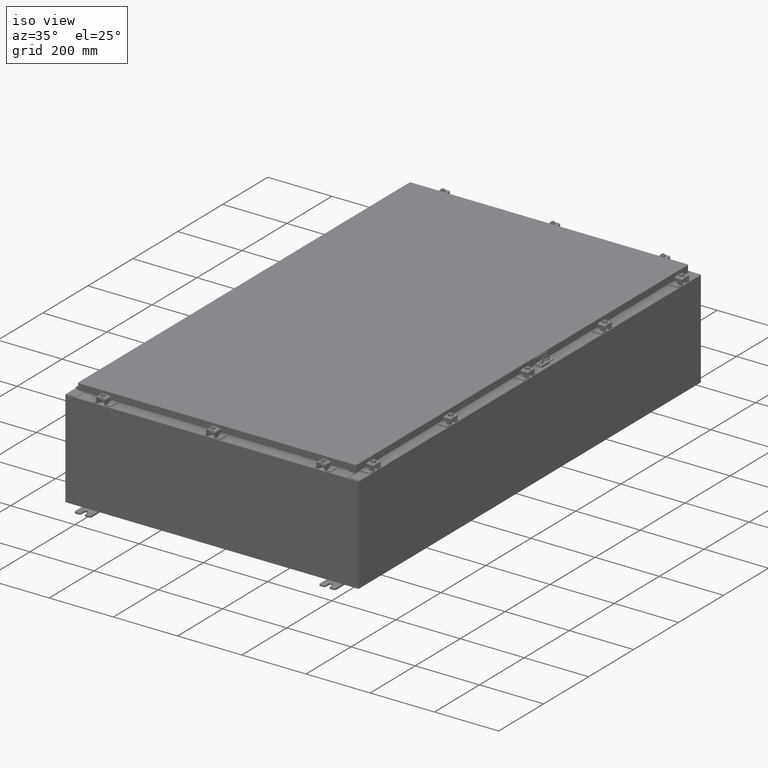
[diagram: clean part render]
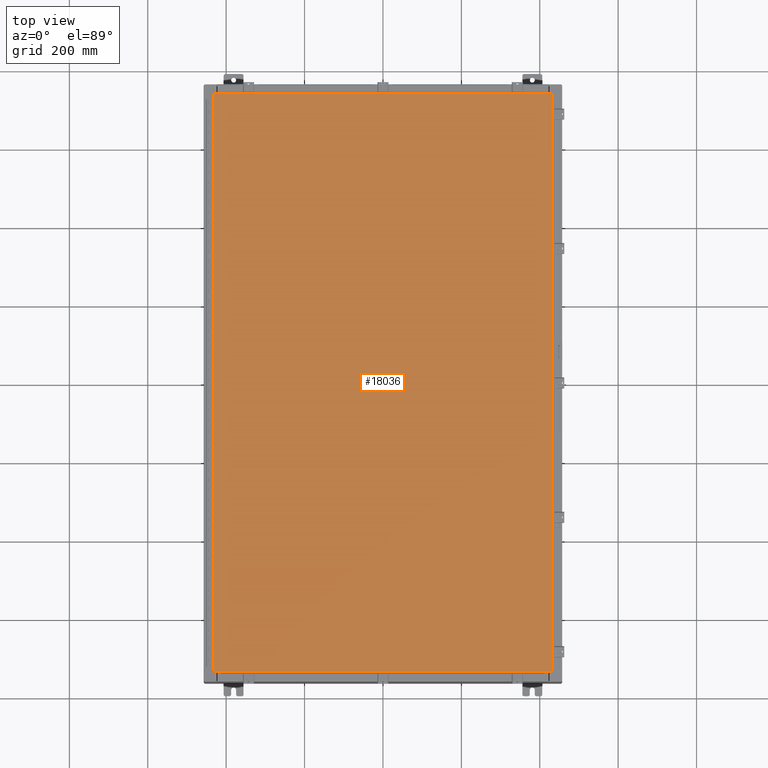
[diagram: tour spotlight — one face highlighted and labeled with its STEP entity id]
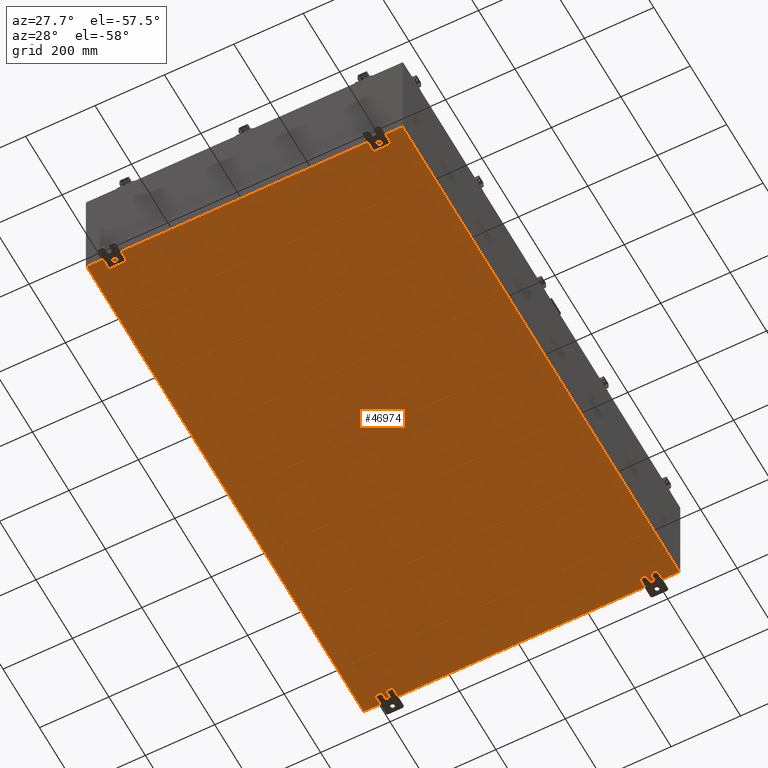
[diagram: tour spotlight — one face highlighted and labeled with its STEP entity id]
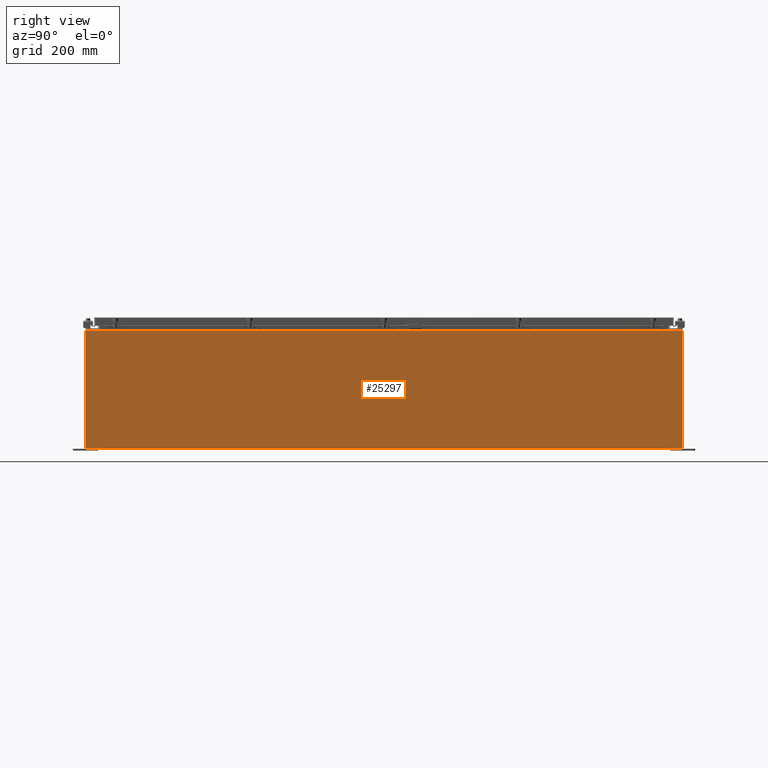
[diagram: tour spotlight — one face highlighted and labeled with its STEP entity id]
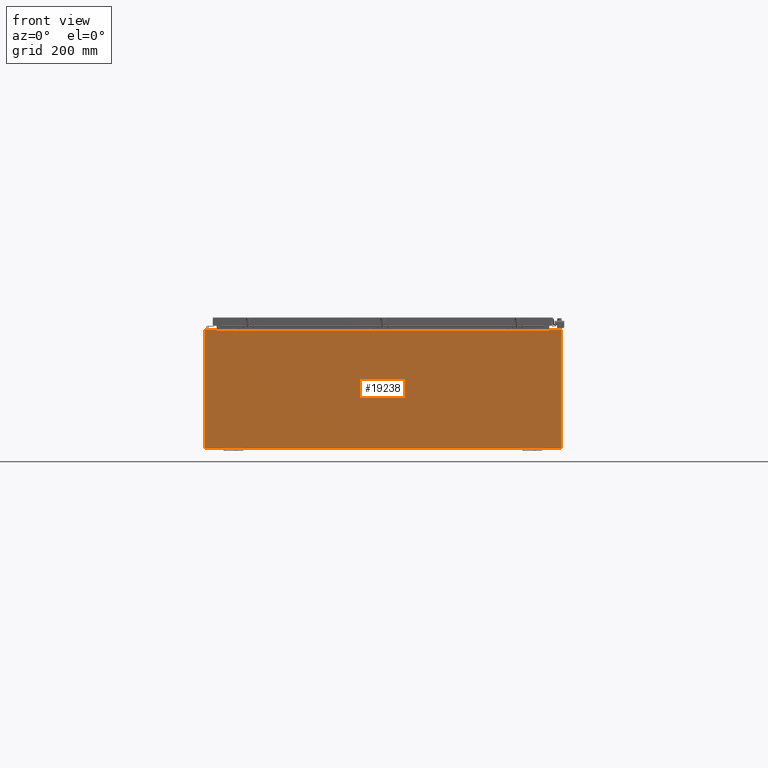
[diagram: tour spotlight — one face highlighted and labeled with its STEP entity id]
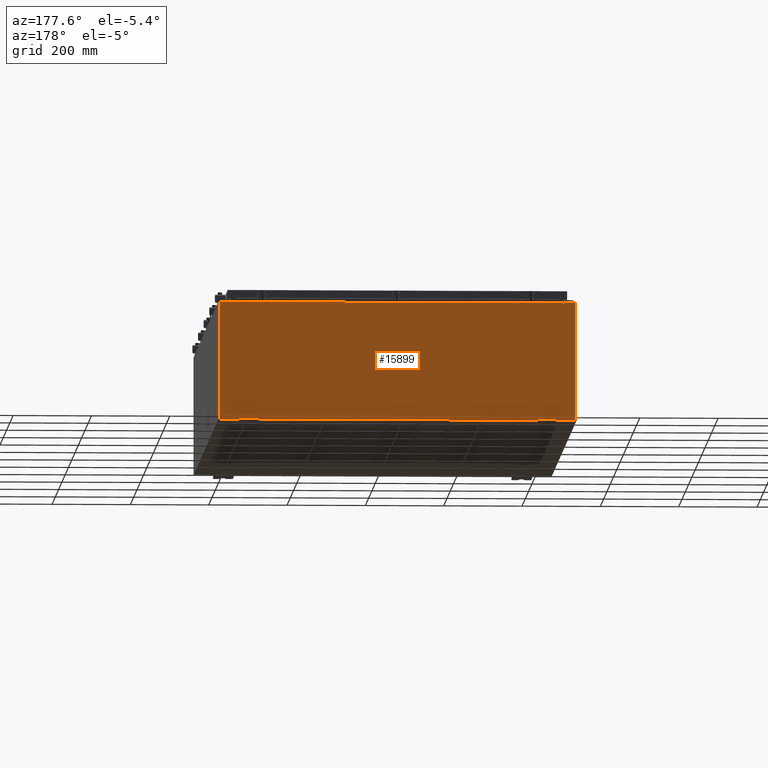
[diagram: tour spotlight — one face highlighted and labeled with its STEP entity id]
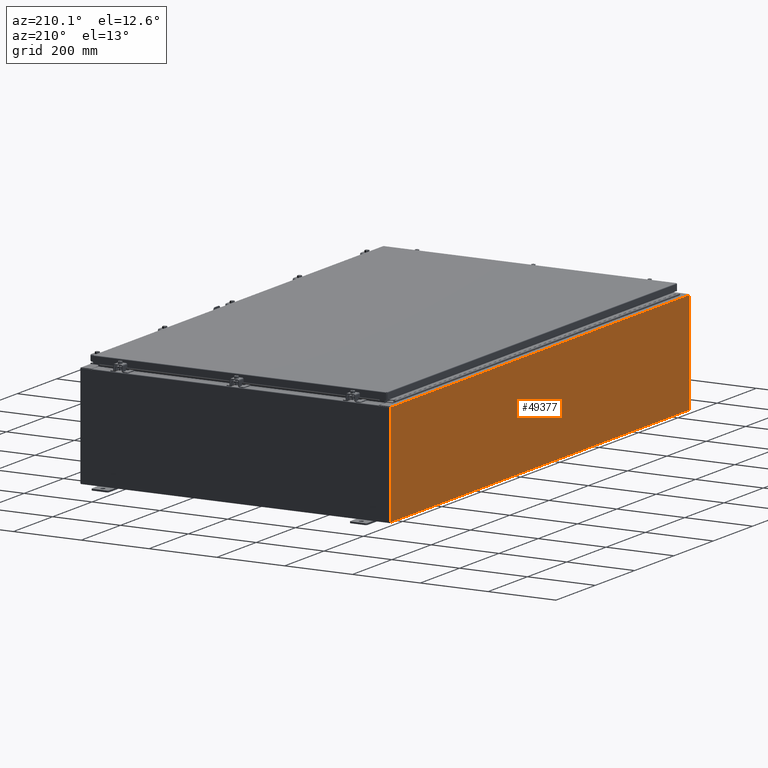
[diagram: tour spotlight — one face highlighted and labeled with its STEP entity id]
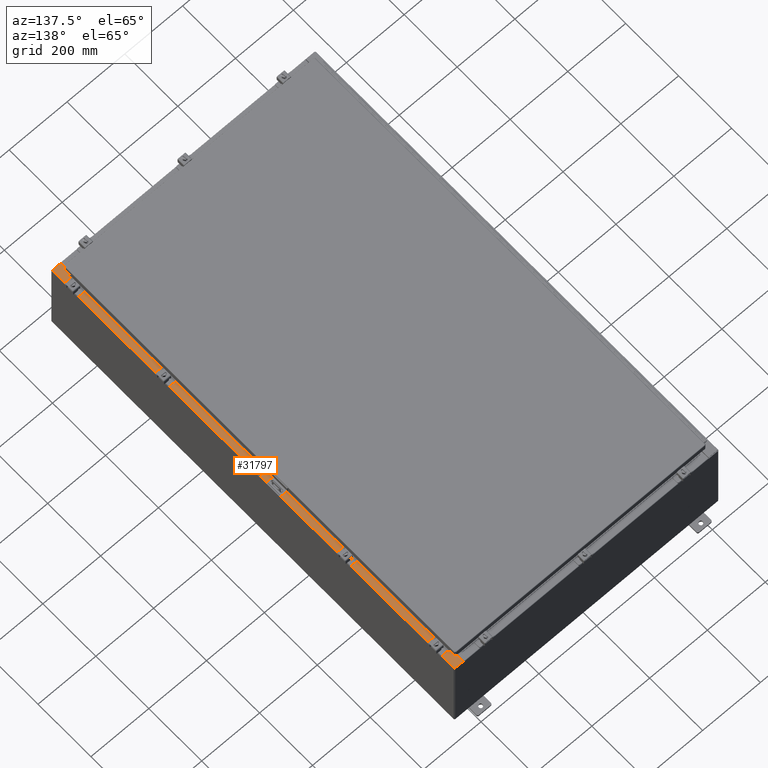
[diagram: tour spotlight — one face highlighted and labeled with its STEP entity id]
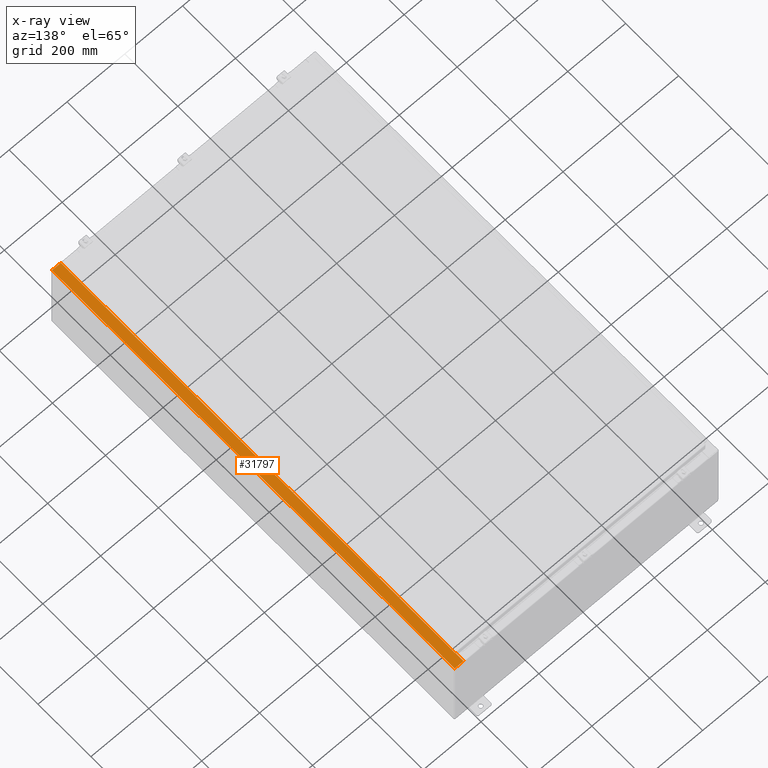
[diagram: x-ray of the same camera — body ghosted, this tour face saturated]
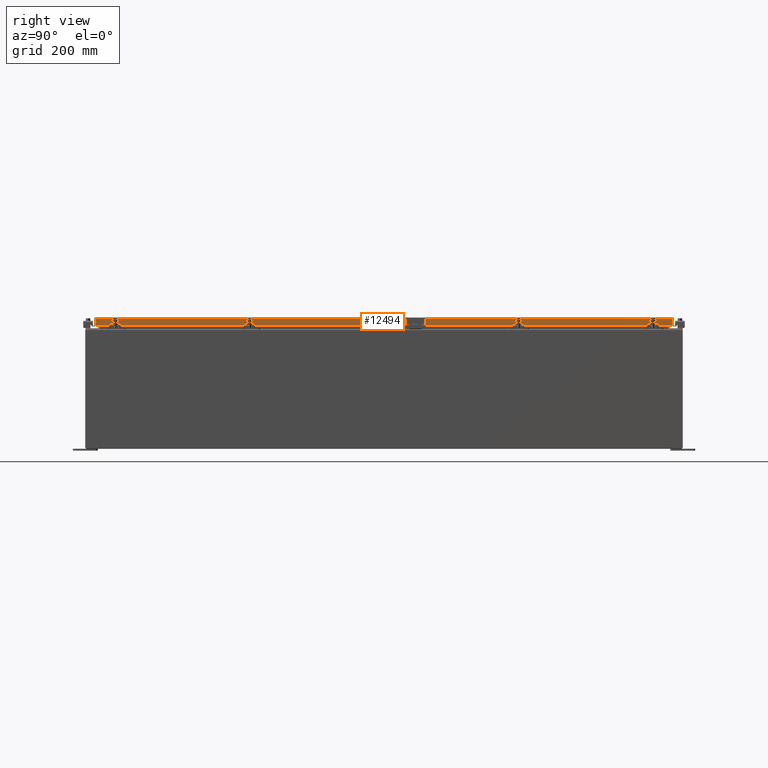
[diagram: tour spotlight — one face highlighted and labeled with its STEP entity id]
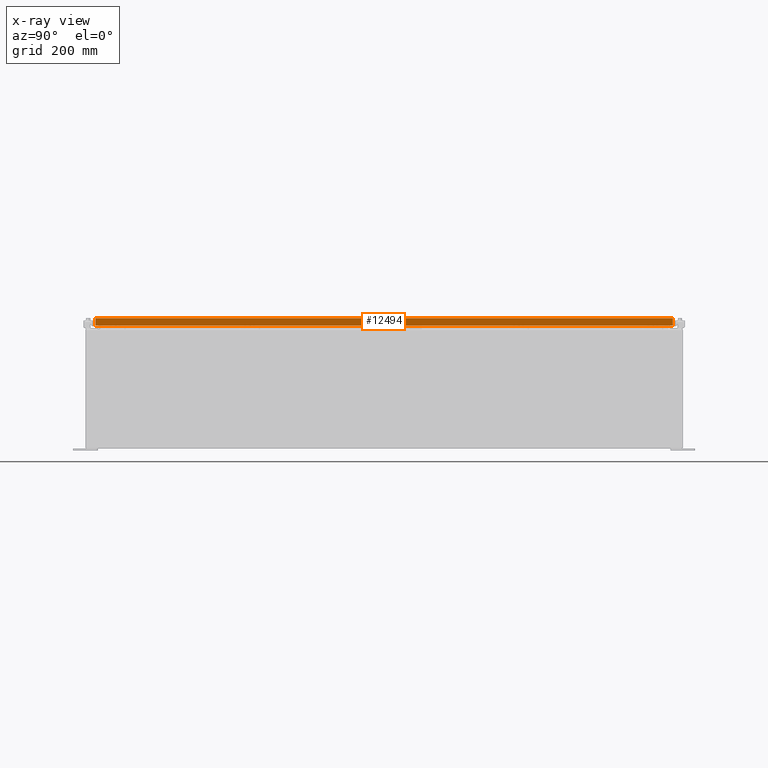
[diagram: x-ray of the same camera — body ghosted, this tour face saturated]
A machine part: a face-by-face anatomy tour. The part has 3554 B-rep faces; the first image is the clean iso view, then the 8 largest visible faces are spotlighted one at a time (largest first), each with its STEP entity span.

Face 1 — top view, entity #18036. In plain terms, the highlighted planar face has unit normal (0, 0, -1).
Definition (entity closure, byte-faithful):
#2076 = LINE ( 'NONE', #22888, #25494 ) ;
#2261 = VERTEX_POINT ( 'NONE', #32185 ) ;
#2514 = CARTESIAN_POINT ( 'NONE',  ( -16.99029999999999800, -29.00630000000000300, 2.185478394931410600E-015 ) ) ;
#4805 = ORIENTED_EDGE ( 'NONE', *, *, #32977, .T. ) ;
#5569 = EDGE_CURVE ( 'NONE', #51980, #23741, #58957, .T. ) ;
#12551 = PLANE ( 'NONE',  #32837 ) ;
#13723 = ORIENTED_EDGE ( 'NONE', *, *, #26821, .T. ) ;
#17564 = DIRECTION ( 'NONE',  ( 0.0000000000000000000, 0.0000000000000000000, -1.000000000000000000 ) ) ;
#18036 = ADVANCED_FACE ( 'NONE', ( #22284 ), #12551, .F. ) ;
#18334 = CARTESIAN_POINT ( 'NONE',  ( 16.99030000000000500, 29.00630000000000300, 2.185478394931410600E-015 ) ) ;
#18447 = VECTOR ( 'NONE', #64044, 39.37007874015748100 ) ;
#20234 = DIRECTION ( 'NONE',  ( -1.000000000000000000, -0.0000000000000000000, -0.0000000000000000000 ) ) ;
#20605 = VECTOR ( 'NONE', #37382, 39.37007874015748100 ) ;
#20784 = VECTOR ( 'NONE', #20234, 39.37007874015748100 ) ;
#22284 = FACE_OUTER_BOUND ( 'NONE', #61946, .T. ) ;
#22888 = CARTESIAN_POINT ( 'NONE',  ( -16.99029999999998400, 29.00630000000000000, 4.370956789862821100E-015 ) ) ;
#23741 = VERTEX_POINT ( 'NONE', #37579 ) ;
#25494 = VECTOR ( 'NONE', #57697, 39.37007874015748100 ) ;
#26821 = EDGE_CURVE ( 'NONE', #23741, #2261, #2076, .T. ) ;
#32185 = CARTESIAN_POINT ( 'NONE',  ( -16.99029999999999800, -29.00630000000000300, 2.185478394931410600E-015 ) ) ;
#32837 = AXIS2_PLACEMENT_3D ( 'NONE', #42398, #17564, #52376 ) ;
#32977 = EDGE_CURVE ( 'NONE', #37134, #51980, #58158, .T. ) ;
#37134 = VERTEX_POINT ( 'NONE', #50047 ) ;
#37382 = DIRECTION ( 'NONE',  ( 1.000000000000000000, -0.0000000000000000000, -0.0000000000000000000 ) ) ;
#37579 = CARTESIAN_POINT ( 'NONE',  ( -16.99029999999998400, 29.00630000000000000, 4.370956789862821100E-015 ) ) ;
#40736 = ORIENTED_EDGE ( 'NONE', *, *, #5569, .T. ) ;
#41894 = ORIENTED_EDGE ( 'NONE', *, *, #43353, .T. ) ;
#42398 = CARTESIAN_POINT ( 'NONE',  ( 0.0000000000000000000, 0.0000000000000000000, 0.0000000000000000000 ) ) ;
#43353 = EDGE_CURVE ( 'NONE', #2261, #37134, #47117, .T. ) ;
#47117 = LINE ( 'NONE', #2514, #20605 ) ;
#50031 = CARTESIAN_POINT ( 'NONE',  ( 16.99030000000000500, 29.00630000000000300, 2.185478394931410600E-015 ) ) ;
#50047 = CARTESIAN_POINT ( 'NONE',  ( 16.99030000000000500, -29.00630000000000000, 0.0000000000000000000 ) ) ;
#51980 = VERTEX_POINT ( 'NONE', #18334 ) ;
#52376 = DIRECTION ( 'NONE',  ( -1.000000000000000000, 0.0000000000000000000, -0.0000000000000000000 ) ) ;
#54256 = CARTESIAN_POINT ( 'NONE',  ( 16.99030000000000500, -29.00630000000000000, 0.0000000000000000000 ) ) ;
#57697 = DIRECTION ( 'NONE',  ( 0.0000000000000000000, -1.000000000000000000, 0.0000000000000000000 ) ) ;
#58158 = LINE ( 'NONE', #54256, #18447 ) ;
#58957 = LINE ( 'NONE', #50031, #20784 ) ;
#61946 = EDGE_LOOP ( 'NONE', ( #41894, #4805, #40736, #13723 ) ) ;
#64044 = DIRECTION ( 'NONE',  ( 0.0000000000000000000, 1.000000000000000000, 0.0000000000000000000 ) ) ;

Face 2 — auxiliary view, entity #46974. In plain terms, the highlighted planar face has unit normal (0, 0, -1).
Definition (entity closure, byte-faithful):
#1791 = ORIENTED_EDGE ( 'NONE', *, *, #50958, .T. ) ;
#2017 = LINE ( 'NONE', #12471, #53434 ) ;
#2811 = LINE ( 'NONE', #39851, #54238 ) ;
#3257 = DIRECTION ( 'NONE',  ( 0.0000000000000000000, 0.0000000000000000000, -1.000000000000000000 ) ) ;
#7009 = EDGE_LOOP ( 'NONE', ( #55235, #1791, #44378, #52585 ) ) ;
#9996 = DIRECTION ( 'NONE',  ( -1.000000000000000000, -0.0000000000000000000, -0.0000000000000000000 ) ) ;
#10268 = AXIS2_PLACEMENT_3D ( 'NONE', #18085, #3257, #38132 ) ;
#12471 = CARTESIAN_POINT ( 'NONE',  ( -18.00000000000000400, -29.92530000000001100, -0.07469999999999998900 ) ) ;
#18085 = CARTESIAN_POINT ( 'NONE',  ( 0.0000000000000000000, 0.0000000000000000000, -0.07469999999999998900 ) ) ;
#18659 = CARTESIAN_POINT ( 'NONE',  ( -17.91230000000000200, -29.92530000000002100, -0.07469999999999996100 ) ) ;
#19912 = CARTESIAN_POINT ( 'NONE',  ( -17.91230000000000200, 29.92529999999998600, -0.07469999999999998900 ) ) ;
#20500 = VERTEX_POINT ( 'NONE', #44718 ) ;
#27079 = EDGE_CURVE ( 'NONE', #20500, #53424, #2811, .T. ) ;
#30181 = DIRECTION ( 'NONE',  ( -0.0000000000000000000, -1.000000000000000000, -0.0000000000000000000 ) ) ;
#33113 = PLANE ( 'NONE',  #10268 ) ;
#37734 = EDGE_CURVE ( 'NONE', #20500, #54442, #44159, .T. ) ;
#38025 = EDGE_CURVE ( 'NONE', #39006, #54442, #2017, .T. ) ;
#38132 = DIRECTION ( 'NONE',  ( -1.000000000000000000, 0.0000000000000000000, -0.0000000000000000000 ) ) ;
#39006 = VERTEX_POINT ( 'NONE', #55904 ) ;
#39851 = CARTESIAN_POINT ( 'NONE',  ( -18.00000000000000400, 29.92529999999998900, -0.07469999999999998900 ) ) ;
#40205 = CARTESIAN_POINT ( 'NONE',  ( 17.91229999999999800, 29.92529999999999300, -0.07469999999999996100 ) ) ;
#41180 = FACE_OUTER_BOUND ( 'NONE', #7009, .T. ) ;
#41837 = CARTESIAN_POINT ( 'NONE',  ( 17.91229999999999800, -29.92530000000001100, -0.07469999999999998900 ) ) ;
#44159 = LINE ( 'NONE', #40205, #55804 ) ;
#44378 = ORIENTED_EDGE ( 'NONE', *, *, #27079, .F. ) ;
#44718 = CARTESIAN_POINT ( 'NONE',  ( 17.91229999999999800, 29.92529999999999300, -0.07469999999999996100 ) ) ;
#46974 = ADVANCED_FACE ( 'NONE', ( #41180 ), #33113, .T. ) ;
#49062 = VECTOR ( 'NONE', #53468, 39.37007874015748100 ) ;
#50958 = EDGE_CURVE ( 'NONE', #39006, #53424, #62269, .T. ) ;
#52585 = ORIENTED_EDGE ( 'NONE', *, *, #37734, .T. ) ;
#53424 = VERTEX_POINT ( 'NONE', #19912 ) ;
#53434 = VECTOR ( 'NONE', #57318, 39.37007874015748100 ) ;
#53468 = DIRECTION ( 'NONE',  ( -0.0000000000000000000, 1.000000000000000000, -0.0000000000000000000 ) ) ;
#54238 = VECTOR ( 'NONE', #9996, 39.37007874015748100 ) ;
#54442 = VERTEX_POINT ( 'NONE', #41837 ) ;
#55235 = ORIENTED_EDGE ( 'NONE', *, *, #38025, .F. ) ;
#55804 = VECTOR ( 'NONE', #30181, 39.37007874015748100 ) ;
#55904 = CARTESIAN_POINT ( 'NONE',  ( -17.91230000000000200, -29.92530000000001100, -0.07469999999999996100 ) ) ;
#57318 = DIRECTION ( 'NONE',  ( 1.000000000000000000, 0.0000000000000000000, 0.0000000000000000000 ) ) ;
#62269 = LINE ( 'NONE', #18659, #49062 ) ;

Face 3 — right view, entity #25297. In plain terms, the highlighted planar face has unit normal (-1, 0, 0).
Definition (entity closure, byte-faithful):
#601 = CARTESIAN_POINT ( 'NONE',  ( 18.00000000000003900, -29.92530000000001100, 11.83760000000000200 ) ) ;
#1358 = DIRECTION ( 'NONE',  ( -3.482016343714355500E-015, 0.0000000000000000000, -1.000000000000000000 ) ) ;
#1902 = LINE ( 'NONE', #18791, #13592 ) ;
#8255 = VERTEX_POINT ( 'NONE', #24995 ) ;
#8955 = EDGE_CURVE ( 'NONE', #56559, #25603, #31363, .T. ) ;
#9485 = VECTOR ( 'NONE', #1358, 39.37007874015748100 ) ;
#10104 = VERTEX_POINT ( 'NONE', #24286 ) ;
#13471 = CARTESIAN_POINT ( 'NONE',  ( 17.99999999999999600, 0.0000000000000000000, -6.293494815404046100E-014 ) ) ;
#13592 = VECTOR ( 'NONE', #58620, 39.37007874015748100 ) ;
#14316 = ORIENTED_EDGE ( 'NONE', *, *, #43026, .T. ) ;
#18411 = ORIENTED_EDGE ( 'NONE', *, *, #39712, .T. ) ;
#18488 = DIRECTION ( 'NONE',  ( 3.482016343714355100E-015, 0.0000000000000000000, 1.000000000000000000 ) ) ;
#18791 = CARTESIAN_POINT ( 'NONE',  ( 18.00000000000003900, 29.92529999999999300, 11.83760000000000200 ) ) ;
#21398 = CARTESIAN_POINT ( 'NONE',  ( 17.99999999999999600, -29.92530000000001100, -6.293494815404046100E-014 ) ) ;
#22995 = LINE ( 'NONE', #25051, #34646 ) ;
#23608 = AXIS2_PLACEMENT_3D ( 'NONE', #13471, #48331, #18488 ) ;
#24286 = CARTESIAN_POINT ( 'NONE',  ( 17.99999999999999600, 29.92529999999999300, 0.01299999999999985200 ) ) ;
#24995 = CARTESIAN_POINT ( 'NONE',  ( 18.00000000000003900, 29.92529999999999300, 11.83760000000000200 ) ) ;
#25051 = CARTESIAN_POINT ( 'NONE',  ( 17.99999999999999600, 29.92529999999998900, -6.293494815404046100E-014 ) ) ;
#25297 = ADVANCED_FACE ( 'NONE', ( #61487 ), #43313, .F. ) ;
#25603 = VERTEX_POINT ( 'NONE', #25869 ) ;
#25869 = CARTESIAN_POINT ( 'NONE',  ( 17.99999999999999600, -29.92530000000001100, 0.01299999999999985200 ) ) ;
#28200 = EDGE_LOOP ( 'NONE', ( #18411, #31679, #30068, #14316 ) ) ;
#28361 = LINE ( 'NONE', #31920, #53246 ) ;
#30068 = ORIENTED_EDGE ( 'NONE', *, *, #58838, .F. ) ;
#31363 = LINE ( 'NONE', #21398, #9485 ) ;
#31679 = ORIENTED_EDGE ( 'NONE', *, *, #8955, .T. ) ;
#31920 = CARTESIAN_POINT ( 'NONE',  ( 17.99999999999999600, -29.92530000000001100, 0.01299999999999985200 ) ) ;
#34646 = VECTOR ( 'NONE', #54824, 39.37007874015748100 ) ;
#39712 = EDGE_CURVE ( 'NONE', #8255, #56559, #1902, .T. ) ;
#43026 = EDGE_CURVE ( 'NONE', #10104, #8255, #22995, .T. ) ;
#43313 = PLANE ( 'NONE',  #23608 ) ;
#48331 = DIRECTION ( 'NONE',  ( -1.000000000000000000, 0.0000000000000000000, 3.482016343714355100E-015 ) ) ;
#53246 = VECTOR ( 'NONE', #61692, 39.37007874015748100 ) ;
#54824 = DIRECTION ( 'NONE',  ( 3.482016343714355500E-015, 0.0000000000000000000, 1.000000000000000000 ) ) ;
#56559 = VERTEX_POINT ( 'NONE', #601 ) ;
#58620 = DIRECTION ( 'NONE',  ( -0.0000000000000000000, -1.000000000000000000, -0.0000000000000000000 ) ) ;
#58838 = EDGE_CURVE ( 'NONE', #10104, #25603, #28361, .T. ) ;
#61487 = FACE_OUTER_BOUND ( 'NONE', #28200, .T. ) ;
#61692 = DIRECTION ( 'NONE',  ( -0.0000000000000000000, -1.000000000000000000, -0.0000000000000000000 ) ) ;

Face 4 — front view, entity #19238. In plain terms, the highlighted planar face has unit normal (0, 1, -0).
Definition (entity closure, byte-faithful):
#370 = ORIENTED_EDGE ( 'NONE', *, *, #5492, .T. ) ;
#508 = EDGE_LOOP ( 'NONE', ( #2580, #6771, #55484, #48830, #38501, #35771, #30732, #11753, #23488, #5987, #13632, #370 ) ) ;
#2554 = VECTOR ( 'NONE', #42338, 39.37007874015748100 ) ;
#2580 = ORIENTED_EDGE ( 'NONE', *, *, #55678, .F. ) ;
#2705 = VERTEX_POINT ( 'NONE', #64553 ) ;
#2760 = CARTESIAN_POINT ( 'NONE',  ( 16.63720000000000400, 0.0000000000000000000, 1.092739197465705300E-014 ) ) ;
#3083 = DIRECTION ( 'NONE',  ( 2.688223102148528000E-016, 1.000000000000000000, -1.677591767810434000E-016 ) ) ;
#3291 = VECTOR ( 'NONE', #26362, 39.37007874015748100 ) ;
#4143 = CARTESIAN_POINT ( 'NONE',  ( -16.67455000000000000, 0.0000000000000000000, 5.874949999999986800 ) ) ;
#4801 = EDGE_CURVE ( 'NONE', #45247, #5004, #23249, .T. ) ;
#5004 = VERTEX_POINT ( 'NONE', #4143 ) ;
#5026 = EDGE_CURVE ( 'NONE', #13296, #37782, #23985, .T. ) ;
#5492 = EDGE_CURVE ( 'NONE', #35417, #16003, #50376, .T. ) ;
#5987 = ORIENTED_EDGE ( 'NONE', *, *, #49272, .T. ) ;
#6771 = ORIENTED_EDGE ( 'NONE', *, *, #4801, .F. ) ;
#7016 = VECTOR ( 'NONE', #7778, 39.37007874015748100 ) ;
#7778 = DIRECTION ( 'NONE',  ( 8.326672684688674100E-016, -1.677591767810434500E-016, 1.000000000000000000 ) ) ;
#7993 = CARTESIAN_POINT ( 'NONE',  ( 16.63720000000000400, 0.0000000000000000000, 5.874950000000009000 ) ) ;
#9466 = CARTESIAN_POINT ( 'NONE',  ( -16.63720000000000000, 0.0000000000000000000, -1.092739197465705300E-014 ) ) ;
#10385 = LINE ( 'NONE', #55384, #11948 ) ;
#10681 = CARTESIAN_POINT ( 'NONE',  ( 17.92530000000000400, 0.0000000000000000000, 5.925300000000009800 ) ) ;
#11753 = ORIENTED_EDGE ( 'NONE', *, *, #35418, .T. ) ;
#11932 = AXIS2_PLACEMENT_3D ( 'NONE', #17888, #52686, #22908 ) ;
#11948 = VECTOR ( 'NONE', #25604, 39.37007874015748100 ) ;
#13296 = VERTEX_POINT ( 'NONE', #31264 ) ;
#13430 = VECTOR ( 'NONE', #34533, 39.37007874015748100 ) ;
#13632 = ORIENTED_EDGE ( 'NONE', *, *, #41399, .T. ) ;
#14126 = AXIS2_PLACEMENT_3D ( 'NONE', #32926, #3083, #37939 ) ;
#14158 = VECTOR ( 'NONE', #36068, 39.37007874015748100 ) ;
#14519 = CARTESIAN_POINT ( 'NONE',  ( -17.92529999999999600, 0.0000000000000000000, -5.925300000000011600 ) ) ;
#16003 = VERTEX_POINT ( 'NONE', #29375 ) ;
#16544 = LINE ( 'NONE', #21313, #3291 ) ;
#17888 = CARTESIAN_POINT ( 'NONE',  ( 16.65587500000000500, 0.0000000000000000000, 5.874950000000009000 ) ) ;
#18203 = LINE ( 'NONE', #9466, #43145 ) ;
#18516 = CARTESIAN_POINT ( 'NONE',  ( 0.0000000000000000000, 0.0000000000000000000, 0.0000000000000000000 ) ) ;
#19238 = ADVANCED_FACE ( 'NONE', ( #49385 ), #48348, .F. ) ;
#21109 = CARTESIAN_POINT ( 'NONE',  ( -17.92529999999999600, 0.0000000000000000000, 5.925299999999988500 ) ) ;
#21221 = VERTEX_POINT ( 'NONE', #40125 ) ;
#21313 = CARTESIAN_POINT ( 'NONE',  ( -17.92529999999999600, 0.0000000000000000000, 5.925299999999988500 ) ) ;
#22852 = CARTESIAN_POINT ( 'NONE',  ( 17.92530000000000400, 0.0000000000000000000, 5.925300000000009800 ) ) ;
#22908 = DIRECTION ( 'NONE',  ( 0.0000000000000000000, 1.677591767810434500E-016, -1.000000000000000000 ) ) ;
#23249 = CIRCLE ( 'NONE', #14126, 0.01867499999999949400 ) ;
#23488 = ORIENTED_EDGE ( 'NONE', *, *, #62375, .T. ) ;
#23524 = DIRECTION ( 'NONE',  ( -2.688223102148531000E-016, -1.000000000000000000, -1.677591767810432300E-016 ) ) ;
#23985 = LINE ( 'NONE', #44472, #50436 ) ;
#24512 = DIRECTION ( 'NONE',  ( -8.326672684688674100E-016, 1.677591767810434500E-016, -1.000000000000000000 ) ) ;
#25604 = DIRECTION ( 'NONE',  ( -8.764412287646708500E-014, 1.677591767810201100E-016, -1.000000000000000000 ) ) ;
#26362 = DIRECTION ( 'NONE',  ( 1.000000000000000000, 2.688223102148527500E-016, 8.631476285595129400E-016 ) ) ;
#27434 = LINE ( 'NONE', #45908, #14158 ) ;
#29375 = CARTESIAN_POINT ( 'NONE',  ( -16.67455000000000000, 0.0000000000000000000, 5.925299999999988500 ) ) ;
#29433 = DIRECTION ( 'NONE',  ( 1.000000000000000000, 2.688223102148527500E-016, 8.326672684688674100E-016 ) ) ;
#30598 = CARTESIAN_POINT ( 'NONE',  ( 16.63720000000000400, 0.0000000000000000000, 5.912300000000009900 ) ) ;
#30732 = ORIENTED_EDGE ( 'NONE', *, *, #55544, .F. ) ;
#31264 = CARTESIAN_POINT ( 'NONE',  ( -16.63720000000000000, 0.0000000000000000000, 5.912299999999988600 ) ) ;
#32926 = CARTESIAN_POINT ( 'NONE',  ( -16.65587499999999800, 0.0000000000000000000, 5.874949999999986800 ) ) ;
#34533 = DIRECTION ( 'NONE',  ( -1.000000000000000000, -2.688223102148527500E-016, -8.326672684688674100E-016 ) ) ;
#34954 = EDGE_CURVE ( 'NONE', #50635, #47575, #54779, .T. ) ;
#35417 = VERTEX_POINT ( 'NONE', #21109 ) ;
#35418 = EDGE_CURVE ( 'NONE', #21221, #52527, #16544, .T. ) ;
#35771 = ORIENTED_EDGE ( 'NONE', *, *, #34954, .F. ) ;
#36068 = DIRECTION ( 'NONE',  ( 8.326672684688674100E-016, -1.677591767810434500E-016, 1.000000000000000000 ) ) ;
#37314 = CARTESIAN_POINT ( 'NONE',  ( -16.67455000000000000, 0.0000000000000000000, -1.639108796198557900E-014 ) ) ;
#37627 = VECTOR ( 'NONE', #55508, 39.37007874015748100 ) ;
#37782 = VERTEX_POINT ( 'NONE', #30598 ) ;
#37939 = DIRECTION ( 'NONE',  ( 0.0000000000000000000, 1.677591767810434500E-016, -1.000000000000000000 ) ) ;
#38363 = LINE ( 'NONE', #14519, #13430 ) ;
#38501 = ORIENTED_EDGE ( 'NONE', *, *, #49012, .F. ) ;
#39410 = CARTESIAN_POINT ( 'NONE',  ( -17.92529999999999600, 0.0000000000000000000, 5.925299999999988500 ) ) ;
#39695 = LINE ( 'NONE', #10681, #37627 ) ;
#40125 = CARTESIAN_POINT ( 'NONE',  ( 16.67455000000000700, 0.0000000000000000000, 5.925300000000009800 ) ) ;
#41241 = AXIS2_PLACEMENT_3D ( 'NONE', #18516, #23524, #58336 ) ;
#41399 = EDGE_CURVE ( 'NONE', #64056, #35417, #27434, .T. ) ;
#42333 = LINE ( 'NONE', #37314, #2554 ) ;
#42338 = DIRECTION ( 'NONE',  ( 8.326672684688674100E-016, -1.677591767810434500E-016, 1.000000000000000000 ) ) ;
#43145 = VECTOR ( 'NONE', #24512, 39.37007874015748100 ) ;
#44472 = CARTESIAN_POINT ( 'NONE',  ( -16.63720000000000000, 0.0000000000000000000, 5.912299999999988600 ) ) ;
#45247 = VERTEX_POINT ( 'NONE', #48054 ) ;
#45908 = CARTESIAN_POINT ( 'NONE',  ( -17.92529999999999600, 0.0000000000000000000, 5.925299999999988500 ) ) ;
#45926 = CARTESIAN_POINT ( 'NONE',  ( 16.67455000000000400, 0.0000000000000000000, 5.874950000000009000 ) ) ;
#47575 = VERTEX_POINT ( 'NONE', #7993 ) ;
#48054 = CARTESIAN_POINT ( 'NONE',  ( -16.63720000000000000, 0.0000000000000000000, 5.874949999999986800 ) ) ;
#48348 = PLANE ( 'NONE',  #41241 ) ;
#48830 = ORIENTED_EDGE ( 'NONE', *, *, #5026, .T. ) ;
#49012 = EDGE_CURVE ( 'NONE', #47575, #37782, #63578, .T. ) ;
#49272 = EDGE_CURVE ( 'NONE', #2705, #64056, #38363, .T. ) ;
#49385 = FACE_OUTER_BOUND ( 'NONE', #508, .T. ) ;
#49656 = CARTESIAN_POINT ( 'NONE',  ( -17.92529999999999600, 0.0000000000000000000, -5.925300000000011600 ) ) ;
#50376 = LINE ( 'NONE', #39410, #53507 ) ;
#50436 = VECTOR ( 'NONE', #29433, 39.37007874015748100 ) ;
#50635 = VERTEX_POINT ( 'NONE', #45926 ) ;
#52527 = VERTEX_POINT ( 'NONE', #22852 ) ;
#52686 = DIRECTION ( 'NONE',  ( 2.688223102148528000E-016, 1.000000000000000000, -1.677591767810434000E-016 ) ) ;
#53507 = VECTOR ( 'NONE', #54395, 39.37007874015748100 ) ;
#54395 = DIRECTION ( 'NONE',  ( 1.000000000000000000, 2.688223102148527500E-016, 8.631476285595129400E-016 ) ) ;
#54779 = CIRCLE ( 'NONE', #11932, 0.01867499999999949400 ) ;
#55384 = CARTESIAN_POINT ( 'NONE',  ( 16.67454999999949500, 0.0000000000000000000, -1.431488348680073800E-012 ) ) ;
#55434 = EDGE_CURVE ( 'NONE', #13296, #45247, #18203, .T. ) ;
#55484 = ORIENTED_EDGE ( 'NONE', *, *, #55434, .F. ) ;
#55508 = DIRECTION ( 'NONE',  ( -8.326672684688674100E-016, 1.677591767810434500E-016, -1.000000000000000000 ) ) ;
#55544 = EDGE_CURVE ( 'NONE', #21221, #50635, #10385, .T. ) ;
#55678 = EDGE_CURVE ( 'NONE', #5004, #16003, #42333, .T. ) ;
#58336 = DIRECTION ( 'NONE',  ( -8.326672684688674100E-016, 1.677591767810434500E-016, -1.000000000000000000 ) ) ;
#62375 = EDGE_CURVE ( 'NONE', #52527, #2705, #39695, .T. ) ;
#63578 = LINE ( 'NONE', #2760, #7016 ) ;
#64056 = VERTEX_POINT ( 'NONE', #49656 ) ;
#64553 = CARTESIAN_POINT ( 'NONE',  ( 17.92530000000000400, 0.0000000000000000000, -5.925299999999989400 ) ) ;

Face 5 — auxiliary view, entity #15899. In plain terms, the highlighted planar face has unit normal (0, -1, 0).
Definition (entity closure, byte-faithful):
#313 = LINE ( 'NONE', #30324, #26841 ) ;
#701 = CARTESIAN_POINT ( 'NONE',  ( 16.67455000000000400, 0.0000000000000000000, 5.874949999999999200 ) ) ;
#783 = VERTEX_POINT ( 'NONE', #64521 ) ;
#1917 = VERTEX_POINT ( 'NONE', #48556 ) ;
#2829 = CARTESIAN_POINT ( 'NONE',  ( -16.65587499999999800, 0.0000000000000000000, 5.874949999999999200 ) ) ;
#3651 = EDGE_LOOP ( 'NONE', ( #50764, #28074, #61138, #45308, #58115, #60093, #49687, #42574, #20580, #14125, #46812, #18749 ) ) ;
#3769 = DIRECTION ( 'NONE',  ( 0.0000000000000000000, 0.0000000000000000000, -1.000000000000000000 ) ) ;
#3975 = EDGE_CURVE ( 'NONE', #36913, #46261, #18661, .T. ) ;
#4128 = CARTESIAN_POINT ( 'NONE',  ( -17.92529999999999600, 0.0000000000000000000, 5.925300000000000000 ) ) ;
#5471 = CARTESIAN_POINT ( 'NONE',  ( -17.92529999999999600, 0.0000000000000000000, -5.925300000000000000 ) ) ;
#6352 = VECTOR ( 'NONE', #35295, 39.37007874015748100 ) ;
#7846 = DIRECTION ( 'NONE',  ( 0.0000000000000000000, 0.0000000000000000000, -1.000000000000000000 ) ) ;
#8236 = LINE ( 'NONE', #28148, #59643 ) ;
#8740 = LINE ( 'NONE', #59794, #46955 ) ;
#10711 = EDGE_CURVE ( 'NONE', #27248, #20926, #15361, .T. ) ;
#12117 = CARTESIAN_POINT ( 'NONE',  ( -17.92529999999999600, 0.0000000000000000000, 5.925300000000000000 ) ) ;
#12389 = DIRECTION ( 'NONE',  ( 0.0000000000000000000, 0.0000000000000000000, 1.000000000000000000 ) ) ;
#12406 = CARTESIAN_POINT ( 'NONE',  ( -16.63720000000000000, 0.0000000000000000000, 5.912299999999998300 ) ) ;
#12840 = EDGE_CURVE ( 'NONE', #46261, #22266, #21300, .T. ) ;
#13726 = CARTESIAN_POINT ( 'NONE',  ( -16.63720000000000000, 0.0000000000000000000, 5.874949999999999200 ) ) ;
#13803 = EDGE_CURVE ( 'NONE', #63252, #783, #19627, .T. ) ;
#14125 = ORIENTED_EDGE ( 'NONE', *, *, #13803, .T. ) ;
#14708 = DIRECTION ( 'NONE',  ( -0.0000000000000000000, -0.0000000000000000000, 1.000000000000000000 ) ) ;
#14727 = CARTESIAN_POINT ( 'NONE',  ( 16.63720000000000400, 0.0000000000000000000, 5.874949999999999200 ) ) ;
#15361 = LINE ( 'NONE', #4128, #25517 ) ;
#15664 = LINE ( 'NONE', #33748, #40613 ) ;
#15899 = ADVANCED_FACE ( 'NONE', ( #60612 ), #23516, .F. ) ;
#16210 = CARTESIAN_POINT ( 'NONE',  ( -16.67455000000000000, 0.0000000000000000000, 5.925300000000000000 ) ) ;
#17472 = DIRECTION ( 'NONE',  ( -0.0000000000000000000, 1.000000000000000000, -0.0000000000000000000 ) ) ;
#18661 = CIRCLE ( 'NONE', #24546, 0.01867499999999949400 ) ;
#18749 = ORIENTED_EDGE ( 'NONE', *, *, #32126, .T. ) ;
#19627 = LINE ( 'NONE', #5471, #6352 ) ;
#19756 = VECTOR ( 'NONE', #12389, 39.37007874015748100 ) ;
#20580 = ORIENTED_EDGE ( 'NONE', *, *, #57756, .T. ) ;
#20719 = DIRECTION ( 'NONE',  ( 1.000000000000000000, 0.0000000000000000000, 0.0000000000000000000 ) ) ;
#20926 = VERTEX_POINT ( 'NONE', #43133 ) ;
#20989 = EDGE_CURVE ( 'NONE', #27248, #60047, #15664, .T. ) ;
#21106 = AXIS2_PLACEMENT_3D ( 'NONE', #47360, #17472, #52296 ) ;
#21300 = LINE ( 'NONE', #47265, #19756 ) ;
#21472 = VERTEX_POINT ( 'NONE', #12406 ) ;
#22266 = VERTEX_POINT ( 'NONE', #16210 ) ;
#22616 = CARTESIAN_POINT ( 'NONE',  ( 16.63720000000000400, 0.0000000000000000000, 5.912299999999998300 ) ) ;
#22979 = VECTOR ( 'NONE', #3769, 39.37007874015748100 ) ;
#23516 = PLANE ( 'NONE',  #23990 ) ;
#23990 = AXIS2_PLACEMENT_3D ( 'NONE', #53306, #28544, #63299 ) ;
#24187 = EDGE_CURVE ( 'NONE', #783, #1917, #60856, .T. ) ;
#24546 = AXIS2_PLACEMENT_3D ( 'NONE', #2829, #37679, #7846 ) ;
#25279 = CIRCLE ( 'NONE', #21106, 0.01867499999999949400 ) ;
#25517 = VECTOR ( 'NONE', #44025, 39.37007874015748100 ) ;
#26841 = VECTOR ( 'NONE', #20719, 39.37007874015748100 ) ;
#27248 = VERTEX_POINT ( 'NONE', #36089 ) ;
#28067 = EDGE_CURVE ( 'NONE', #21472, #36913, #36192, .T. ) ;
#28074 = ORIENTED_EDGE ( 'NONE', *, *, #3975, .F. ) ;
#28148 = CARTESIAN_POINT ( 'NONE',  ( 17.92530000000000400, 0.0000000000000000000, 5.925300000000000000 ) ) ;
#28544 = DIRECTION ( 'NONE',  ( 0.0000000000000000000, -1.000000000000000000, 0.0000000000000000000 ) ) ;
#29176 = VERTEX_POINT ( 'NONE', #22616 ) ;
#29685 = VERTEX_POINT ( 'NONE', #14727 ) ;
#30324 = CARTESIAN_POINT ( 'NONE',  ( -16.63720000000000000, 0.0000000000000000000, 5.912299999999998300 ) ) ;
#32126 = EDGE_CURVE ( 'NONE', #1917, #22266, #41945, .T. ) ;
#33748 = CARTESIAN_POINT ( 'NONE',  ( 16.67454999999949500, 0.0000000000000000000, -1.447879436642059600E-012 ) ) ;
#34535 = EDGE_CURVE ( 'NONE', #60047, #29685, #25279, .T. ) ;
#34955 = DIRECTION ( 'NONE',  ( 0.0000000000000000000, 0.0000000000000000000, 1.000000000000000000 ) ) ;
#35295 = DIRECTION ( 'NONE',  ( -1.000000000000000000, -0.0000000000000000000, -0.0000000000000000000 ) ) ;
#36089 = CARTESIAN_POINT ( 'NONE',  ( 16.67455000000000700, 0.0000000000000000000, 5.925300000000000000 ) ) ;
#36192 = LINE ( 'NONE', #63414, #22979 ) ;
#36913 = VERTEX_POINT ( 'NONE', #13726 ) ;
#37331 = CARTESIAN_POINT ( 'NONE',  ( -16.67455000000000000, 0.0000000000000000000, 5.874949999999999200 ) ) ;
#37491 = VECTOR ( 'NONE', #14708, 39.37007874015748100 ) ;
#37679 = DIRECTION ( 'NONE',  ( -0.0000000000000000000, 1.000000000000000000, -0.0000000000000000000 ) ) ;
#38151 = DIRECTION ( 'NONE',  ( 0.0000000000000000000, 0.0000000000000000000, -1.000000000000000000 ) ) ;
#38771 = DIRECTION ( 'NONE',  ( -8.681145560799821800E-014, 0.0000000000000000000, -1.000000000000000000 ) ) ;
#40613 = VECTOR ( 'NONE', #38771, 39.37007874015748100 ) ;
#41945 = LINE ( 'NONE', #12117, #53592 ) ;
#42574 = ORIENTED_EDGE ( 'NONE', *, *, #10711, .T. ) ;
#43133 = CARTESIAN_POINT ( 'NONE',  ( 17.92530000000000400, 0.0000000000000000000, 5.925300000000000000 ) ) ;
#44025 = DIRECTION ( 'NONE',  ( 1.000000000000000000, 0.0000000000000000000, 3.048036009064577000E-017 ) ) ;
#45308 = ORIENTED_EDGE ( 'NONE', *, *, #54295, .T. ) ;
#46261 = VERTEX_POINT ( 'NONE', #37331 ) ;
#46812 = ORIENTED_EDGE ( 'NONE', *, *, #24187, .T. ) ;
#46955 = VECTOR ( 'NONE', #34955, 39.37007874015748100 ) ;
#46985 = DIRECTION ( 'NONE',  ( 1.000000000000000000, 0.0000000000000000000, 3.048036009064577000E-017 ) ) ;
#47265 = CARTESIAN_POINT ( 'NONE',  ( -16.67455000000000000, 0.0000000000000000000, 0.0000000000000000000 ) ) ;
#47360 = CARTESIAN_POINT ( 'NONE',  ( 16.65587500000000500, 0.0000000000000000000, 5.874949999999999200 ) ) ;
#47812 = CARTESIAN_POINT ( 'NONE',  ( 17.92530000000000400, 0.0000000000000000000, -5.925300000000000000 ) ) ;
#48556 = CARTESIAN_POINT ( 'NONE',  ( -17.92529999999999600, 0.0000000000000000000, 5.925300000000000000 ) ) ;
#49305 = EDGE_CURVE ( 'NONE', #29685, #29176, #8740, .T. ) ;
#49687 = ORIENTED_EDGE ( 'NONE', *, *, #20989, .F. ) ;
#50764 = ORIENTED_EDGE ( 'NONE', *, *, #12840, .F. ) ;
#52296 = DIRECTION ( 'NONE',  ( 0.0000000000000000000, 0.0000000000000000000, -1.000000000000000000 ) ) ;
#53306 = CARTESIAN_POINT ( 'NONE',  ( 0.0000000000000000000, 0.0000000000000000000, 0.0000000000000000000 ) ) ;
#53592 = VECTOR ( 'NONE', #46985, 39.37007874015748100 ) ;
#54295 = EDGE_CURVE ( 'NONE', #21472, #29176, #313, .T. ) ;
#57756 = EDGE_CURVE ( 'NONE', #20926, #63252, #8236, .T. ) ;
#58115 = ORIENTED_EDGE ( 'NONE', *, *, #49305, .F. ) ;
#59643 = VECTOR ( 'NONE', #38151, 39.37007874015748100 ) ;
#59794 = CARTESIAN_POINT ( 'NONE',  ( 16.63720000000000400, 0.0000000000000000000, 0.0000000000000000000 ) ) ;
#60047 = VERTEX_POINT ( 'NONE', #701 ) ;
#60093 = ORIENTED_EDGE ( 'NONE', *, *, #34535, .F. ) ;
#60612 = FACE_OUTER_BOUND ( 'NONE', #3651, .T. ) ;
#60856 = LINE ( 'NONE', #64535, #37491 ) ;
#61138 = ORIENTED_EDGE ( 'NONE', *, *, #28067, .F. ) ;
#63252 = VERTEX_POINT ( 'NONE', #47812 ) ;
#63299 = DIRECTION ( 'NONE',  ( 0.0000000000000000000, -0.0000000000000000000, -1.000000000000000000 ) ) ;
#63414 = CARTESIAN_POINT ( 'NONE',  ( -16.63720000000000000, 0.0000000000000000000, 0.0000000000000000000 ) ) ;
#64521 = CARTESIAN_POINT ( 'NONE',  ( -17.92529999999999600, 0.0000000000000000000, -5.925300000000000000 ) ) ;
#64535 = CARTESIAN_POINT ( 'NONE',  ( -17.92529999999999600, 0.0000000000000000000, 5.925300000000000000 ) ) ;

Face 6 — auxiliary view, entity #49377. In plain terms, the highlighted planar face has unit normal (1, 0, 0).
Definition (entity closure, byte-faithful):
#550 = DIRECTION ( 'NONE',  ( 1.000000000000000000, 0.0000000000000000000, 3.482016343714355100E-015 ) ) ;
#867 = LINE ( 'NONE', #34206, #39070 ) ;
#4351 = DIRECTION ( 'NONE',  ( -0.0000000000000000000, 1.000000000000000000, -0.0000000000000000000 ) ) ;
#8247 = CARTESIAN_POINT ( 'NONE',  ( -18.00000000000004300, -29.92530000000001100, 11.83760000000000200 ) ) ;
#8616 = CARTESIAN_POINT ( 'NONE',  ( -18.00000000000000400, -29.92530000000001100, 0.01299999999999985200 ) ) ;
#9154 = DIRECTION ( 'NONE',  ( 0.0000000000000000000, 1.000000000000000000, 0.0000000000000000000 ) ) ;
#10576 = CARTESIAN_POINT ( 'NONE',  ( -18.00000000000000400, 0.0000000000000000000, -6.293494815404046100E-014 ) ) ;
#11404 = EDGE_CURVE ( 'NONE', #28088, #18493, #64316, .T. ) ;
#12819 = ORIENTED_EDGE ( 'NONE', *, *, #51298, .T. ) ;
#14172 = EDGE_CURVE ( 'NONE', #41704, #18493, #867, .T. ) ;
#15534 = ORIENTED_EDGE ( 'NONE', *, *, #14172, .F. ) ;
#18493 = VERTEX_POINT ( 'NONE', #52523 ) ;
#18644 = VECTOR ( 'NONE', #47418, 39.37007874015748100 ) ;
#20090 = ORIENTED_EDGE ( 'NONE', *, *, #11404, .T. ) ;
#20427 = DIRECTION ( 'NONE',  ( 3.482016343714355500E-015, 0.0000000000000000000, -1.000000000000000000 ) ) ;
#20602 = DIRECTION ( 'NONE',  ( 3.482016343714355100E-015, 0.0000000000000000000, -1.000000000000000000 ) ) ;
#20986 = VECTOR ( 'NONE', #9154, 39.37007874015748100 ) ;
#24605 = AXIS2_PLACEMENT_3D ( 'NONE', #10576, #550, #20602 ) ;
#28088 = VERTEX_POINT ( 'NONE', #38641 ) ;
#30454 = CARTESIAN_POINT ( 'NONE',  ( -18.00000000000000400, 29.92529999999998900, -6.293494815404046100E-014 ) ) ;
#30577 = EDGE_CURVE ( 'NONE', #37364, #28088, #60714, .T. ) ;
#34206 = CARTESIAN_POINT ( 'NONE',  ( -18.00000000000000400, 29.92529999999998900, 0.01299999999999985200 ) ) ;
#37364 = VERTEX_POINT ( 'NONE', #8247 ) ;
#38641 = CARTESIAN_POINT ( 'NONE',  ( -18.00000000000004300, 29.92529999999998900, 11.83760000000000200 ) ) ;
#39008 = CARTESIAN_POINT ( 'NONE',  ( -18.00000000000004300, -29.92530000000001800, 11.83760000000000200 ) ) ;
#39070 = VECTOR ( 'NONE', #4351, 39.37007874015748100 ) ;
#40440 = EDGE_LOOP ( 'NONE', ( #62843, #20090, #15534, #12819 ) ) ;
#41704 = VERTEX_POINT ( 'NONE', #8616 ) ;
#42376 = CARTESIAN_POINT ( 'NONE',  ( -18.00000000000000400, -29.92530000000001100, -6.293494815404046100E-014 ) ) ;
#45144 = LINE ( 'NONE', #42376, #18644 ) ;
#47418 = DIRECTION ( 'NONE',  ( -3.482016343714355500E-015, 0.0000000000000000000, 1.000000000000000000 ) ) ;
#49377 = ADVANCED_FACE ( 'NONE', ( #57018 ), #50404, .F. ) ;
#50404 = PLANE ( 'NONE',  #24605 ) ;
#51298 = EDGE_CURVE ( 'NONE', #41704, #37364, #45144, .T. ) ;
#52523 = CARTESIAN_POINT ( 'NONE',  ( -18.00000000000000400, 29.92529999999998600, 0.01299999999999985200 ) ) ;
#52632 = VECTOR ( 'NONE', #20427, 39.37007874015748100 ) ;
#57018 = FACE_OUTER_BOUND ( 'NONE', #40440, .T. ) ;
#60714 = LINE ( 'NONE', #39008, #20986 ) ;
#62843 = ORIENTED_EDGE ( 'NONE', *, *, #30577, .T. ) ;
#64316 = LINE ( 'NONE', #30454, #52632 ) ;

Face 7 — auxiliary view, entity #31797. An x-ray twin of the same camera follows (body ghosted, this face saturated) — the face is partly hidden behind the body. In plain terms, the highlighted planar face has unit normal (-0, 0, -1).
Definition (entity closure, byte-faithful):
#220 = LINE ( 'NONE', #3137, #38413 ) ;
#949 = DIRECTION ( 'NONE',  ( 1.000000000000000000, 0.0000000000000000000, 0.0000000000000000000 ) ) ;
#1273 = DIRECTION ( 'NONE',  ( -1.000000000000000000, 0.0000000000000000000, 0.0000000000000000000 ) ) ;
#2205 = LINE ( 'NONE', #60391, #17019 ) ;
#3137 = CARTESIAN_POINT ( 'NONE',  ( 16.69970000000003900, 0.0000000000000000000, 11.92530000000000900 ) ) ;
#3687 = DIRECTION ( 'NONE',  ( -1.000000000000000000, 0.0000000000000000000, 7.132762385546384700E-015 ) ) ;
#4439 = EDGE_CURVE ( 'NONE', #60408, #51592, #43539, .T. ) ;
#4517 = EDGE_CURVE ( 'NONE', #45653, #32806, #2205, .T. ) ;
#4653 = LINE ( 'NONE', #55001, #56076 ) ;
#5464 = VERTEX_POINT ( 'NONE', #24175 ) ;
#5519 = DIRECTION ( 'NONE',  ( 1.000000000000000000, 0.0000000000000000000, 0.0000000000000000000 ) ) ;
#8169 = DIRECTION ( 'NONE',  ( 0.0000000000000000000, -1.000000000000000000, 0.0000000000000000000 ) ) ;
#8563 = EDGE_CURVE ( 'NONE', #45653, #12862, #220, .T. ) ;
#8672 = DIRECTION ( 'NONE',  ( 1.000000000000000000, 0.0000000000000000000, -7.132762385546384700E-015 ) ) ;
#8710 = CARTESIAN_POINT ( 'NONE',  ( 8.532114493224043100E-014, 29.92529999999999300, 11.92530000000013000 ) ) ;
#8782 = CARTESIAN_POINT ( 'NONE',  ( 16.71270000000004400, 28.59374999999999600, 11.92530000000000900 ) ) ;
#9114 = ORIENTED_EDGE ( 'NONE', *, *, #4517, .F. ) ;
#9248 = FACE_OUTER_BOUND ( 'NONE', #50483, .T. ) ;
#11132 = ORIENTED_EDGE ( 'NONE', *, *, #4439, .F. ) ;
#11904 = EDGE_CURVE ( 'NONE', #59048, #53834, #21427, .T. ) ;
#12862 = VERTEX_POINT ( 'NONE', #32419 ) ;
#13612 = CARTESIAN_POINT ( 'NONE',  ( 16.69970000000003900, 28.63109999999998900, 11.92530000000000900 ) ) ;
#14907 = CARTESIAN_POINT ( 'NONE',  ( 16.71270000000004400, -28.59375000000001100, 11.92530000000000900 ) ) ;
#15037 = DIRECTION ( 'NONE',  ( 7.132762385546384700E-015, 0.0000000000000000000, 1.000000000000000000 ) ) ;
#16801 = LINE ( 'NONE', #28757, #41772 ) ;
#17019 = VECTOR ( 'NONE', #5519, 39.37007874015748100 ) ;
#17188 = ORIENTED_EDGE ( 'NONE', *, *, #33492, .F. ) ;
#17526 = ORIENTED_EDGE ( 'NONE', *, *, #20984, .T. ) ;
#17985 = EDGE_CURVE ( 'NONE', #5464, #54277, #40244, .T. ) ;
#18885 = EDGE_CURVE ( 'NONE', #20048, #41692, #28423, .T. ) ;
#18942 = VECTOR ( 'NONE', #8672, 39.37007874015748100 ) ;
#19675 = DIRECTION ( 'NONE',  ( -7.132762385546384700E-015, 0.0000000000000000000, -1.000000000000000000 ) ) ;
#20048 = VERTEX_POINT ( 'NONE', #25850 ) ;
#20729 = DIRECTION ( 'NONE',  ( 0.0000000000000000000, -1.000000000000000000, 0.0000000000000000000 ) ) ;
#20984 = EDGE_CURVE ( 'NONE', #5464, #20048, #56934, .T. ) ;
#21427 = LINE ( 'NONE', #39306, #36225 ) ;
#23332 = VERTEX_POINT ( 'NONE', #63974 ) ;
#23619 = ORIENTED_EDGE ( 'NONE', *, *, #11904, .F. ) ;
#24175 = CARTESIAN_POINT ( 'NONE',  ( 17.91230000000004100, 29.92529999999999300, 11.92530000000000400 ) ) ;
#25850 = CARTESIAN_POINT ( 'NONE',  ( 16.69970000000003900, 29.92529999999999300, 11.92530000000000900 ) ) ;
#26995 = VECTOR ( 'NONE', #36521, 39.37007874015748100 ) ;
#28423 = LINE ( 'NONE', #50537, #40106 ) ;
#28757 = CARTESIAN_POINT ( 'NONE',  ( 16.75005000000004100, 28.63109999999999600, 11.92530000000000900 ) ) ;
#28924 = VECTOR ( 'NONE', #3687, 39.37007874015748100 ) ;
#30295 = VECTOR ( 'NONE', #1273, 39.37007874015748100 ) ;
#30801 = DIRECTION ( 'NONE',  ( 7.132762385546384700E-015, 0.0000000000000000000, 1.000000000000000000 ) ) ;
#31797 = ADVANCED_FACE ( 'NONE', ( #9248 ), #44505, .F. ) ;
#32419 = CARTESIAN_POINT ( 'NONE',  ( 16.69970000000003900, -29.92530000000001100, 11.92530000000000900 ) ) ;
#32600 = EDGE_CURVE ( 'NONE', #53834, #23332, #56658, .T. ) ;
#32806 = VERTEX_POINT ( 'NONE', #57977 ) ;
#33492 = EDGE_CURVE ( 'NONE', #23332, #41692, #16801, .T. ) ;
#36186 = ORIENTED_EDGE ( 'NONE', *, *, #18885, .T. ) ;
#36225 = VECTOR ( 'NONE', #44331, 39.37007874015748100 ) ;
#36496 = ORIENTED_EDGE ( 'NONE', *, *, #42482, .F. ) ;
#36521 = DIRECTION ( 'NONE',  ( -0.0000000000000000000, -1.000000000000000000, -0.0000000000000000000 ) ) ;
#36868 = CARTESIAN_POINT ( 'NONE',  ( 16.69970000000003900, -28.63110000000000700, 11.92530000000000900 ) ) ;
#38329 = CARTESIAN_POINT ( 'NONE',  ( 16.75005000000004100, -28.59375000000001100, 11.92530000000000900 ) ) ;
#38413 = VECTOR ( 'NONE', #8169, 39.37007874015748100 ) ;
#39050 = ORIENTED_EDGE ( 'NONE', *, *, #8563, .T. ) ;
#39306 = CARTESIAN_POINT ( 'NONE',  ( 16.71270000000004400, 28.59374999999999600, 11.92530000000000900 ) ) ;
#40106 = VECTOR ( 'NONE', #20729, 39.37007874015748100 ) ;
#40244 = LINE ( 'NONE', #61546, #26995 ) ;
#40559 = CARTESIAN_POINT ( 'NONE',  ( 17.91230000000004100, -29.92530000000001100, 11.92530000000000400 ) ) ;
#40978 = CIRCLE ( 'NONE', #41752, 0.01867499999999949400 ) ;
#41051 = AXIS2_PLACEMENT_3D ( 'NONE', #60610, #30801, #949 ) ;
#41692 = VERTEX_POINT ( 'NONE', #13612 ) ;
#41752 = AXIS2_PLACEMENT_3D ( 'NONE', #44897, #15037, #49893 ) ;
#41772 = VECTOR ( 'NONE', #48771, 39.37007874015748100 ) ;
#42256 = ORIENTED_EDGE ( 'NONE', *, *, #32600, .F. ) ;
#42482 = EDGE_CURVE ( 'NONE', #32806, #60408, #40978, .T. ) ;
#43539 = LINE ( 'NONE', #60924, #30295 ) ;
#44331 = DIRECTION ( 'NONE',  ( 1.000000000000000000, 0.0000000000000000000, 0.0000000000000000000 ) ) ;
#44505 = PLANE ( 'NONE',  #44778 ) ;
#44778 = AXIS2_PLACEMENT_3D ( 'NONE', #49278, #19675, #54493 ) ;
#44897 = CARTESIAN_POINT ( 'NONE',  ( 16.75005000000004100, -28.61242500000000900, 11.92530000000000900 ) ) ;
#45442 = LINE ( 'NONE', #48323, #18942 ) ;
#45653 = VERTEX_POINT ( 'NONE', #36868 ) ;
#45998 = EDGE_CURVE ( 'NONE', #51592, #59048, #4653, .T. ) ;
#48323 = CARTESIAN_POINT ( 'NONE',  ( 8.532114493224043100E-014, -29.92530000000001100, 11.92530000000013000 ) ) ;
#48771 = DIRECTION ( 'NONE',  ( -1.000000000000000000, 8.681145560799821800E-014, 0.0000000000000000000 ) ) ;
#49278 = CARTESIAN_POINT ( 'NONE',  ( 8.532114493224043100E-014, 0.0000000000000000000, 11.92530000000013000 ) ) ;
#49486 = ORIENTED_EDGE ( 'NONE', *, *, #17985, .F. ) ;
#49893 = DIRECTION ( 'NONE',  ( 1.000000000000000000, 0.0000000000000000000, 0.0000000000000000000 ) ) ;
#49999 = DIRECTION ( 'NONE',  ( -0.0000000000000000000, 1.000000000000000000, -0.0000000000000000000 ) ) ;
#50483 = EDGE_LOOP ( 'NONE', ( #9114, #39050, #59075, #49486, #17526, #36186, #17188, #42256, #23619, #62908, #11132, #36496 ) ) ;
#50537 = CARTESIAN_POINT ( 'NONE',  ( 16.69970000000003900, 0.0000000000000000000, 11.92530000000000900 ) ) ;
#51592 = VERTEX_POINT ( 'NONE', #14907 ) ;
#53834 = VERTEX_POINT ( 'NONE', #64227 ) ;
#54277 = VERTEX_POINT ( 'NONE', #40559 ) ;
#54493 = DIRECTION ( 'NONE',  ( -1.000000000000000000, 0.0000000000000000000, 7.132762385546384700E-015 ) ) ;
#55001 = CARTESIAN_POINT ( 'NONE',  ( 16.71270000000004400, -28.59375000000001400, 11.92530000000000900 ) ) ;
#56076 = VECTOR ( 'NONE', #49999, 39.37007874015748100 ) ;
#56658 = CIRCLE ( 'NONE', #41051, 0.01867499999999949400 ) ;
#56934 = LINE ( 'NONE', #8710, #28924 ) ;
#57977 = CARTESIAN_POINT ( 'NONE',  ( 16.75005000000004100, -28.63110000000000700, 11.92530000000000900 ) ) ;
#59048 = VERTEX_POINT ( 'NONE', #8782 ) ;
#59075 = ORIENTED_EDGE ( 'NONE', *, *, #62773, .T. ) ;
#60391 = CARTESIAN_POINT ( 'NONE',  ( 16.69970000000003900, -28.63110000000000700, 11.92530000000000900 ) ) ;
#60408 = VERTEX_POINT ( 'NONE', #38329 ) ;
#60610 = CARTESIAN_POINT ( 'NONE',  ( 16.75005000000004100, 28.61242499999999500, 11.92530000000000900 ) ) ;
#60924 = CARTESIAN_POINT ( 'NONE',  ( 16.75005000000004100, -28.59375000000001100, 11.92530000000000900 ) ) ;
#61546 = CARTESIAN_POINT ( 'NONE',  ( 17.91230000000004100, -29.92530000000001100, 11.92530000000000400 ) ) ;
#62773 = EDGE_CURVE ( 'NONE', #12862, #54277, #45442, .T. ) ;
#62908 = ORIENTED_EDGE ( 'NONE', *, *, #45998, .F. ) ;
#63974 = CARTESIAN_POINT ( 'NONE',  ( 16.75005000000004100, 28.63109999999999600, 11.92530000000000900 ) ) ;
#64227 = CARTESIAN_POINT ( 'NONE',  ( 16.75005000000004100, 28.59374999999999600, 11.92530000000000900 ) ) ;

Face 8 — right view, entity #12494. An x-ray twin of the same camera follows (body ghosted, this face saturated) — the face is partly hidden behind the body. In plain terms, the highlighted planar face has unit normal (1, 0, 0).
Definition (entity closure, byte-faithful):
#264 = CARTESIAN_POINT ( 'NONE',  ( 17.07799999999999600, 28.25515786437626200, -0.8500000000000020900 ) ) ;
#1715 = CARTESIAN_POINT ( 'NONE',  ( 17.07800000000000300, -29.00515786437626500, -0.07470000000000015500 ) ) ;
#1854 = FACE_OUTER_BOUND ( 'NONE', #62004, .T. ) ;
#2731 = EDGE_CURVE ( 'NONE', #18597, #61217, #47668, .T. ) ;
#2931 = CARTESIAN_POINT ( 'NONE',  ( 17.07799999999999600, -28.25515786437625800, -0.8500000000000020900 ) ) ;
#3387 = LINE ( 'NONE', #32221, #41613 ) ;
#4581 = DIRECTION ( 'NONE',  ( 1.000000000000000000, 0.0000000000000000000, 2.818880942772360100E-015 ) ) ;
#5386 = EDGE_CURVE ( 'NONE', #25901, #31840, #33286, .T. ) ;
#6059 = VECTOR ( 'NONE', #63964, 39.37007874015748100 ) ;
#7618 = LINE ( 'NONE', #53951, #6059 ) ;
#12494 = ADVANCED_FACE ( 'NONE', ( #1854 ), #64222, .T. ) ;
#12735 = EDGE_CURVE ( 'NONE', #31840, #61217, #26007, .T. ) ;
#14662 = CARTESIAN_POINT ( 'NONE',  ( 17.07800000000000700, -29.00515786437626200, -0.8499999999999999800 ) ) ;
#15969 = EDGE_CURVE ( 'NONE', #59985, #25901, #7618, .T. ) ;
#18597 = VERTEX_POINT ( 'NONE', #63189 ) ;
#20185 = DIRECTION ( 'NONE',  ( 0.0000000000000000000, -1.000000000000000000, 0.0000000000000000000 ) ) ;
#20744 = ORIENTED_EDGE ( 'NONE', *, *, #5386, .F. ) ;
#21147 = VECTOR ( 'NONE', #20185, 39.37007874015748100 ) ;
#22439 = DIRECTION ( 'NONE',  ( -2.818880942772360100E-015, -6.982962677686265900E-015, 1.000000000000000000 ) ) ;
#25901 = VERTEX_POINT ( 'NONE', #2931 ) ;
#26007 = LINE ( 'NONE', #1715, #64131 ) ;
#26590 = DIRECTION ( 'NONE',  ( -2.818880942772360100E-015, -6.982962677686265900E-015, 1.000000000000000000 ) ) ;
#31837 = ORIENTED_EDGE ( 'NONE', *, *, #12735, .F. ) ;
#31840 = VERTEX_POINT ( 'NONE', #14662 ) ;
#32221 = CARTESIAN_POINT ( 'NONE',  ( 17.07800000000000300, 29.00515786437626500, 2.513300154171122100E-013 ) ) ;
#33286 = LINE ( 'NONE', #58119, #58191 ) ;
#36301 = VERTEX_POINT ( 'NONE', #58207 ) ;
#39461 = DIRECTION ( 'NONE',  ( 2.818880942772360100E-015, 0.0000000000000000000, -1.000000000000000000 ) ) ;
#40166 = EDGE_CURVE ( 'NONE', #36301, #18597, #3387, .T. ) ;
#41582 = ORIENTED_EDGE ( 'NONE', *, *, #63969, .F. ) ;
#41613 = VECTOR ( 'NONE', #22439, 39.37007874015748100 ) ;
#43334 = DIRECTION ( 'NONE',  ( 0.0000000000000000000, -1.000000000000000000, 0.0000000000000000000 ) ) ;
#45303 = ORIENTED_EDGE ( 'NONE', *, *, #40166, .T. ) ;
#46087 = LINE ( 'NONE', #48802, #57735 ) ;
#47668 = LINE ( 'NONE', #49982, #21147 ) ;
#48802 = CARTESIAN_POINT ( 'NONE',  ( 17.07800000000000700, -29.09400000000000100, -0.8499999999999999800 ) ) ;
#49566 = ORIENTED_EDGE ( 'NONE', *, *, #15969, .F. ) ;
#49982 = CARTESIAN_POINT ( 'NONE',  ( 17.07800000000000300, 0.0000000000000000000, -0.08770000000000026400 ) ) ;
#53783 = DIRECTION ( 'NONE',  ( 0.0000000000000000000, -1.000000000000000000, 0.0000000000000000000 ) ) ;
#53951 = CARTESIAN_POINT ( 'NONE',  ( 17.07799999999999600, 28.25515786437627600, -0.8500000000000020900 ) ) ;
#54670 = AXIS2_PLACEMENT_3D ( 'NONE', #59030, #4581, #39461 ) ;
#57735 = VECTOR ( 'NONE', #53783, 39.37007874015748100 ) ;
#58119 = CARTESIAN_POINT ( 'NONE',  ( 17.07800000000000700, -29.09400000000000100, -0.8499999999999999800 ) ) ;
#58191 = VECTOR ( 'NONE', #43334, 39.37007874015748100 ) ;
#58207 = CARTESIAN_POINT ( 'NONE',  ( 17.07800000000000700, 29.00515786437627200, -0.8499999999999999800 ) ) ;
#59030 = CARTESIAN_POINT ( 'NONE',  ( 17.07800000000000300, 0.0000000000000000000, 4.808052468849102900E-014 ) ) ;
#59566 = CARTESIAN_POINT ( 'NONE',  ( 17.07800000000000300, -29.00515786437626500, -0.08770000000000026400 ) ) ;
#59985 = VERTEX_POINT ( 'NONE', #264 ) ;
#61125 = ORIENTED_EDGE ( 'NONE', *, *, #2731, .T. ) ;
#61217 = VERTEX_POINT ( 'NONE', #59566 ) ;
#62004 = EDGE_LOOP ( 'NONE', ( #31837, #20744, #49566, #41582, #45303, #61125 ) ) ;
#63189 = CARTESIAN_POINT ( 'NONE',  ( 17.07800000000000300, 29.00515786437626500, -0.08770000000000026400 ) ) ;
#63964 = DIRECTION ( 'NONE',  ( 0.0000000000000000000, -1.000000000000000000, 0.0000000000000000000 ) ) ;
#63969 = EDGE_CURVE ( 'NONE', #36301, #59985, #46087, .T. ) ;
#64131 = VECTOR ( 'NONE', #26590, 39.37007874015748100 ) ;
#64222 = PLANE ( 'NONE',  #54670 ) ;